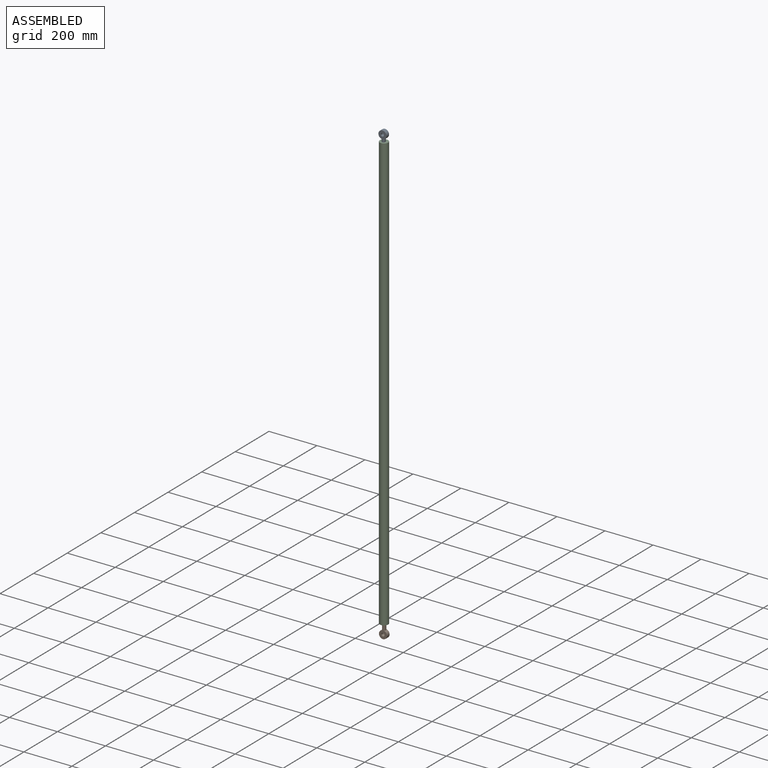
[diagram: assembled view]
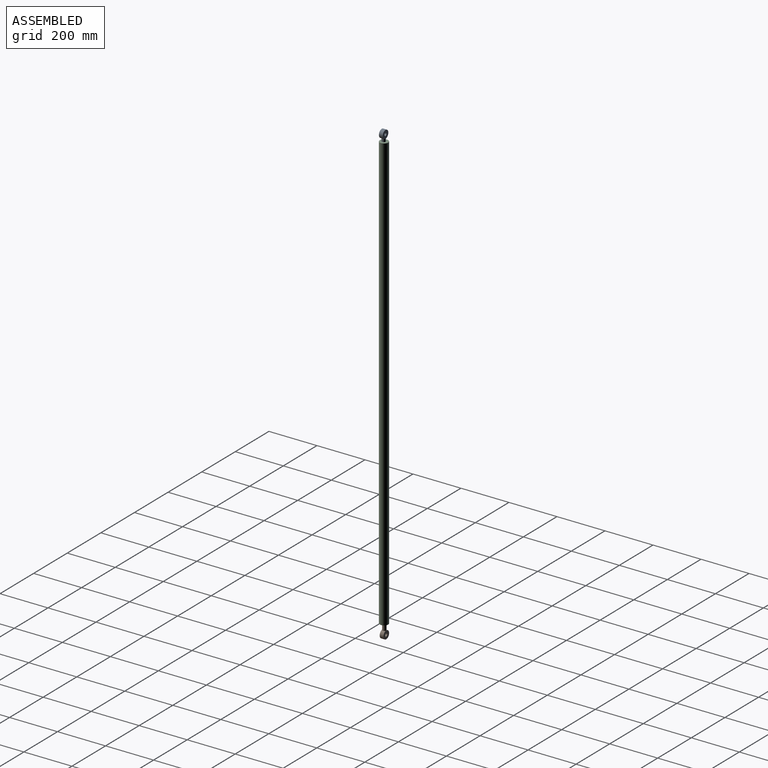
[diagram: assembled view, second angle]
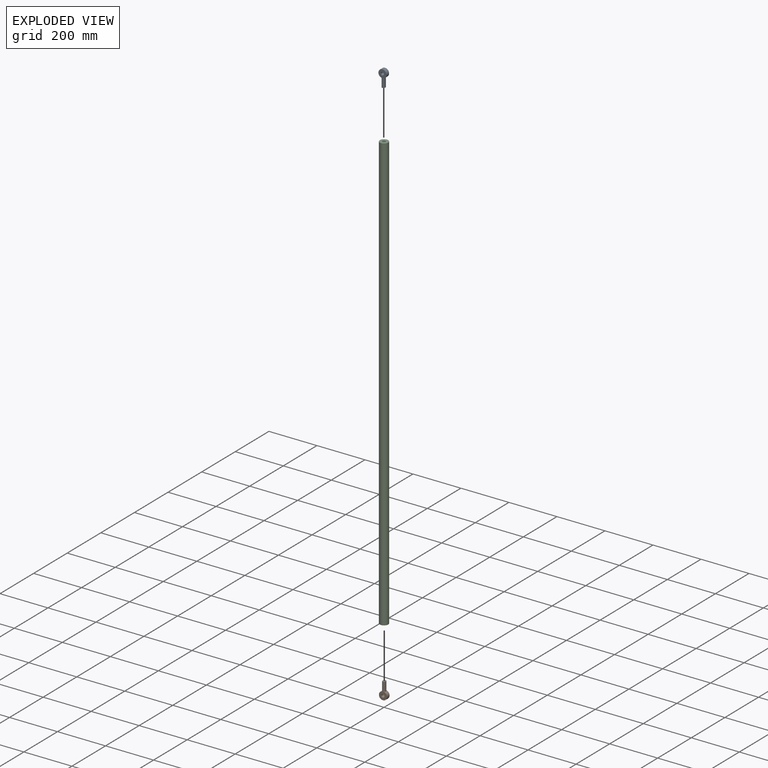
[diagram: exploded view]
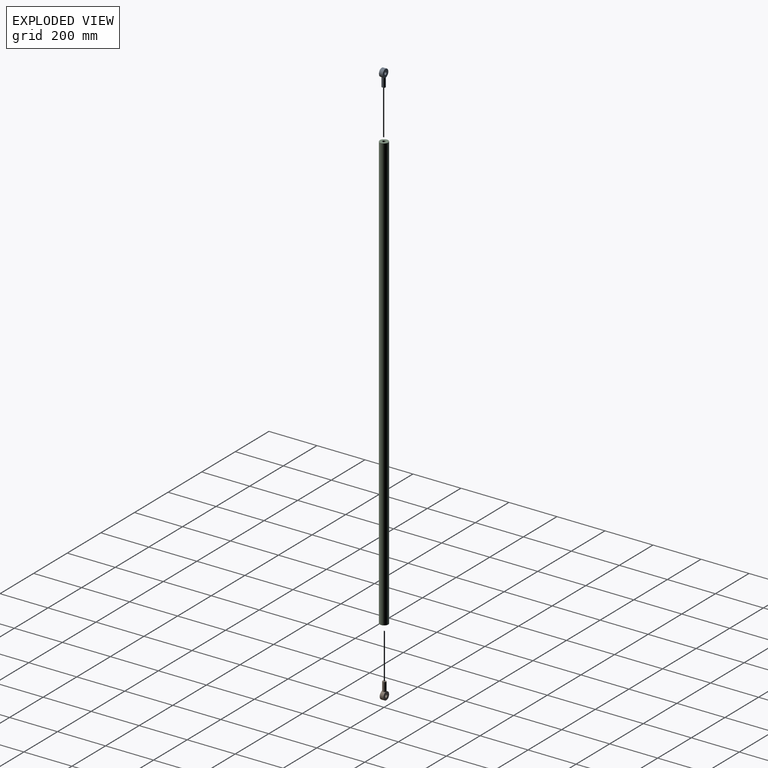
[diagram: exploded view, second angle]
ASSEMBLY  parts=3 mates=2
PART A: 9 faces, bbox 33.3x70.2x15.9 mm
  f0: plane 38.1x3.18mm, normal (1,0,0), area 121mm2, adj f1,f4,f7,f8
  f1: cylinder r=16.67mm len=33.34mm, axis (0,0,-1), area 1492.2mm2, adj f0,f2,f5,f6,f7,f8
  f2: plane 38.1x3.18mm, normal (-1,0,0), area 121mm2, adj f1,f4,f7,f8
  f3: cylinder r=6.35mm len=15.88mm, axis (0,0,-1), area 633.4mm2, adj f5,f6
  f4: plane 15.88x12.7mm, normal (0,-1,0), area 167mm2, adj f0,f2,f7,f8
  f5: plane 33.34x33.34mm, normal (0,0,1), area 746.2mm2, adj f1,f3
  f6: plane 33.34x33.34mm, normal (0,0,-1), area 746.2mm2, adj f1,f3
  f7: cylinder r=6.35mm len=38.1mm, axis (0,1,0), area 747.4mm2, adj f0,f1,f2,f4
  f8: cylinder r=6.35mm len=38.1mm, axis (0,-1,0), area 747.4mm2, adj f0,f1,f2,f4
PART B: same geometry as A
PART C: 4 faces, bbox 35.1x1814.6x35.1 mm
  f0: cylinder r=6.35mm len=1814.62mm, axis (0,1,0), area 72400.1mm2, adj f2,f3
  f1: cylinder r=17.53mm len=1814.62mm, axis (0,1,0), area 199844.9mm2, adj f2,f3
  f2: plane 35.06x35.06mm, normal (0,-1,0), area 838.5mm2, adj f0,f1
  f3: plane 35.06x35.06mm, normal (0,1,0), area 838.5mm2, adj f0,f1
PLACE A rot(axis=(1,0,0),90deg) t=(0,-1.59,1830.03)mm
PLACE B rot(axis=(-1,0,0),90deg) t=(0,1.59,-53.51)mm
PLACE C rot(axis=(-1,0,0),90deg) t=(0,0,-12.7)mm
MATE slider B.f7 <-> C.f0  axis (0,0,1) through (0,0,0)mm
MATE fastened A.f7 <-> C.f0  axis (0,0,-1) through (0,0,1776.52)mm
